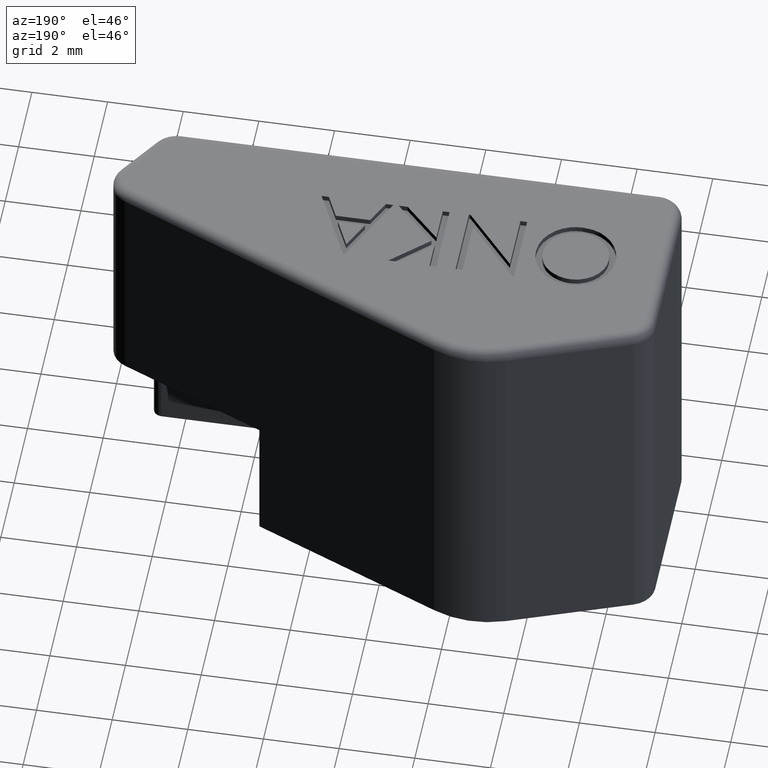
[diagram: clean part render]
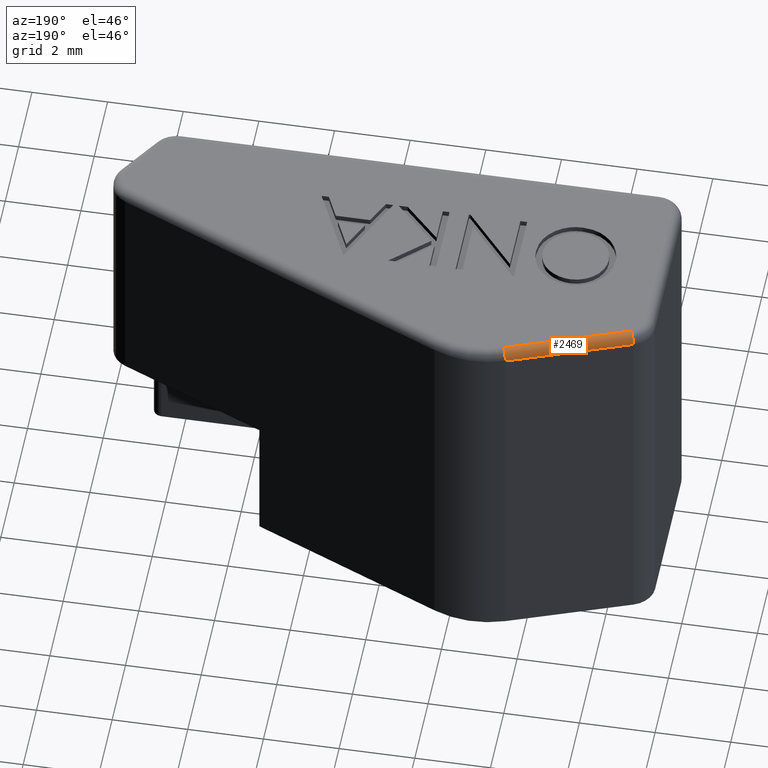
[diagram: same view with one face highlighted and labeled with its STEP entity id]
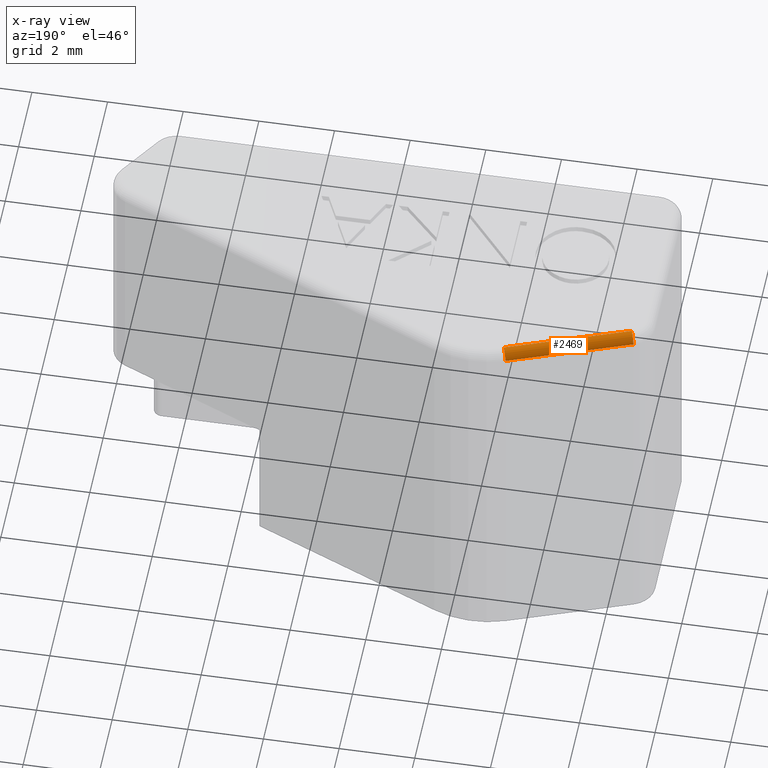
[diagram: x-ray of the same camera — body ghosted, the highlighted face saturated]
A machine part, auxiliary view. The second image highlights one B-rep face of the part: STEP entity #2469.
The next image is the same camera in x-ray: the body ghosted, the highlighted face saturated — about 0% of this face is hidden behind the body in this view.
In plain terms, the highlighted cylindrical surface (edge-blend (fillet) strip) has radius 0.25 mm, axis along (-0.9386, -0.3449, 0).
Its self-contained STEP definition (entity closure, byte-faithful):
#61 = DIRECTION ( 'NONE',  ( 0.3448765817977327800, -0.9386480401766744700, 0.0000000000000000000 ) ) ;
#72 = FACE_OUTER_BOUND ( 'NONE', #1848, .T. ) ;
#103 = CARTESIAN_POINT ( 'NONE',  ( 228.3067284768735000, 151.5841614470040200, 40.64999999999999900 ) ) ;
#104 = DIRECTION ( 'NONE',  ( -0.9386480401766692500, -0.3448765817977466100, 0.0000000000000000000 ) ) ;
#110 = CYLINDRICAL_SURFACE ( 'NONE', #2141, 0.2499999999999871500 ) ;
#172 = CARTESIAN_POINT ( 'NONE',  ( 217.3114746898324900, 147.8106431627630000, 40.64999999999999900 ) ) ;
#181 = LINE ( 'NONE', #172, #2247 ) ;
#191 = DIRECTION ( 'NONE',  ( 0.9386480401766692500, 0.3448765817977466100, -0.0000000000000000000 ) ) ;
#757 = DIRECTION ( 'NONE',  ( 0.9386480401766744700, 0.3448765817977331700, 0.0000000000000000000 ) ) ;
#758 = DIRECTION ( 'NONE',  ( -0.3448765817977327800, 0.9386480401766744700, 0.0000000000000000000 ) ) ;
#768 = CARTESIAN_POINT ( 'NONE',  ( 220.5769159880460100, 148.7440859394869800, 40.64999999999999900 ) ) ;
#877 = DIRECTION ( 'NONE',  ( 0.9386480401766744700, 0.3448765817977331700, 0.0000000000000000000 ) ) ;
#879 = CARTESIAN_POINT ( 'NONE',  ( 217.3976938352820100, 147.5759811527188100, 40.64999999999999900 ) ) ;
#896 = DIRECTION ( 'NONE',  ( -0.3448765817977327800, 0.9386480401766744700, 0.0000000000000000000 ) ) ;
#1410 = ORIENTED_EDGE ( 'NONE', *, *, #2646, .T. ) ;
#1427 = ORIENTED_EDGE ( 'NONE', *, *, #2622, .F. ) ;
#1431 = ORIENTED_EDGE ( 'NONE', *, *, #2440, .F. ) ;
#1476 = CARTESIAN_POINT ( 'NONE',  ( 217.3976938352820100, 147.5759811527188100, 40.89999999999999900 ) ) ;
#1477 = CARTESIAN_POINT ( 'NONE',  ( 220.4906968425965200, 148.9787479495310000, 40.64999999999999900 ) ) ;
#1502 = ORIENTED_EDGE ( 'NONE', *, *, #2493, .F. ) ;
#1504 = CARTESIAN_POINT ( 'NONE',  ( 217.3114746898324900, 147.8106431627630000, 40.64999999999999900 ) ) ;
#1508 = CARTESIAN_POINT ( 'NONE',  ( 220.5769159880460100, 148.7440859394869800, 40.89999999999999900 ) ) ;
#1681 = LINE ( 'NONE', #1709, #2166 ) ;
#1709 = CARTESIAN_POINT ( 'NONE',  ( 228.3067284768735000, 151.5841614470040200, 40.89999999999999900 ) ) ;
#1719 = DIRECTION ( 'NONE',  ( -0.9386480401766692500, -0.3448765817977466100, 0.0000000000000000000 ) ) ;
#1848 = EDGE_LOOP ( 'NONE', ( #1410, #1431, #1427, #1502 ) ) ;
#1891 = VERTEX_POINT ( 'NONE', #1504 ) ;
#1896 = VERTEX_POINT ( 'NONE', #1508 ) ;
#1908 = VERTEX_POINT ( 'NONE', #1476 ) ;
#1913 = VERTEX_POINT ( 'NONE', #1477 ) ;
#2141 = AXIS2_PLACEMENT_3D ( 'NONE', #103, #104, #61 ) ;
#2166 = VECTOR ( 'NONE', #1719, 1000.000000000000200 ) ;
#2247 = VECTOR ( 'NONE', #191, 1000.000000000000200 ) ;
#2334 = AXIS2_PLACEMENT_3D ( 'NONE', #768, #757, #758 ) ;
#2335 = CIRCLE ( 'NONE', #2372, 0.2499999999999871500 ) ;
#2344 = CIRCLE ( 'NONE', #2334, 0.2499999999999871500 ) ;
#2372 = AXIS2_PLACEMENT_3D ( 'NONE', #879, #877, #896 ) ;
#2440 = EDGE_CURVE ( 'NONE', #1896, #1908, #1681, .T. ) ;
#2469 = ADVANCED_FACE ( 'NONE', ( #72 ), #110, .T. ) ;
#2493 = EDGE_CURVE ( 'NONE', #1891, #1913, #181, .T. ) ;
#2622 = EDGE_CURVE ( 'NONE', #1913, #1896, #2344, .T. ) ;
#2646 = EDGE_CURVE ( 'NONE', #1891, #1908, #2335, .T. ) ;